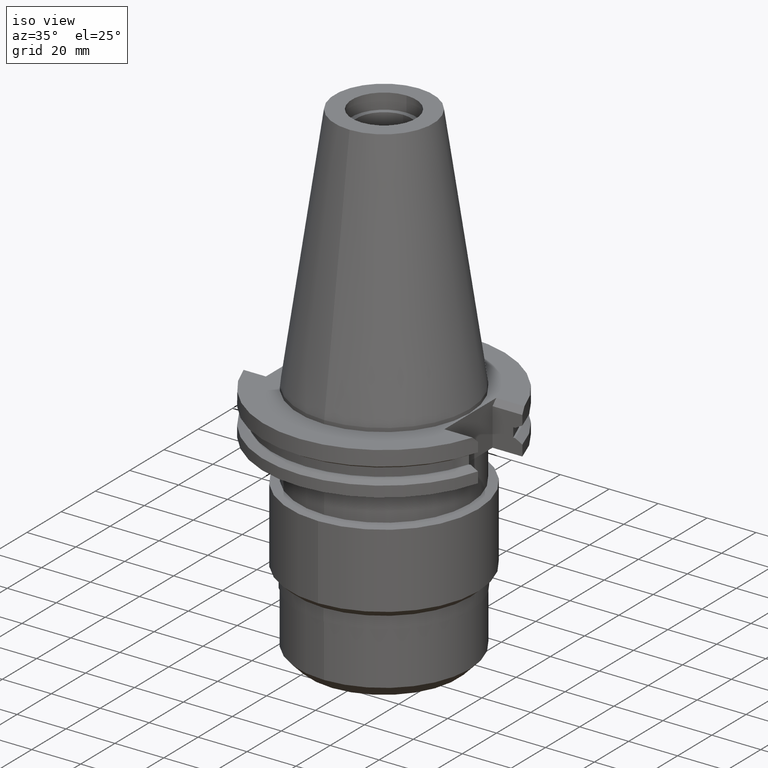
[diagram: clean part render]
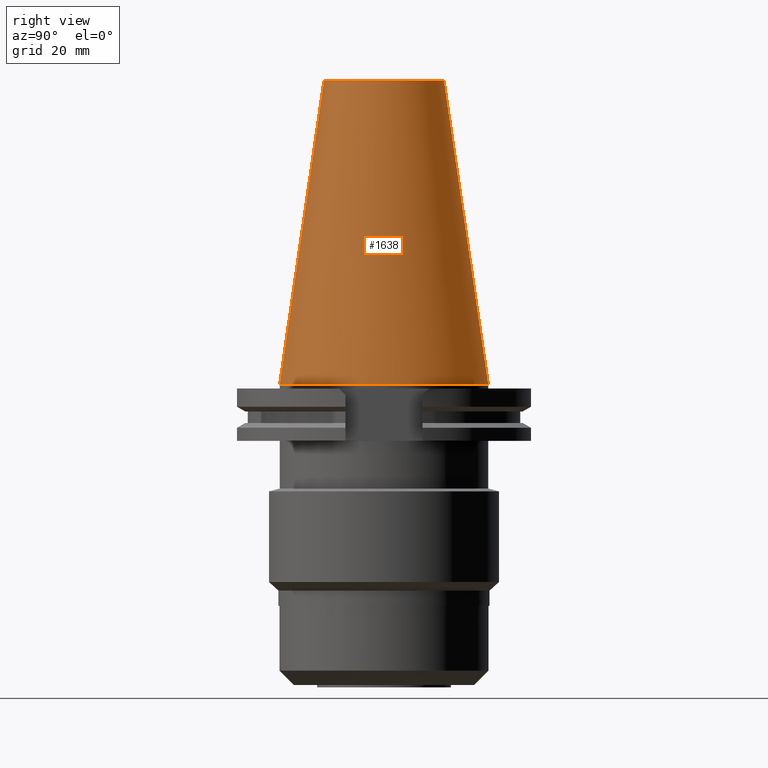
[diagram: tour spotlight — one face highlighted and labeled with its STEP entity id]
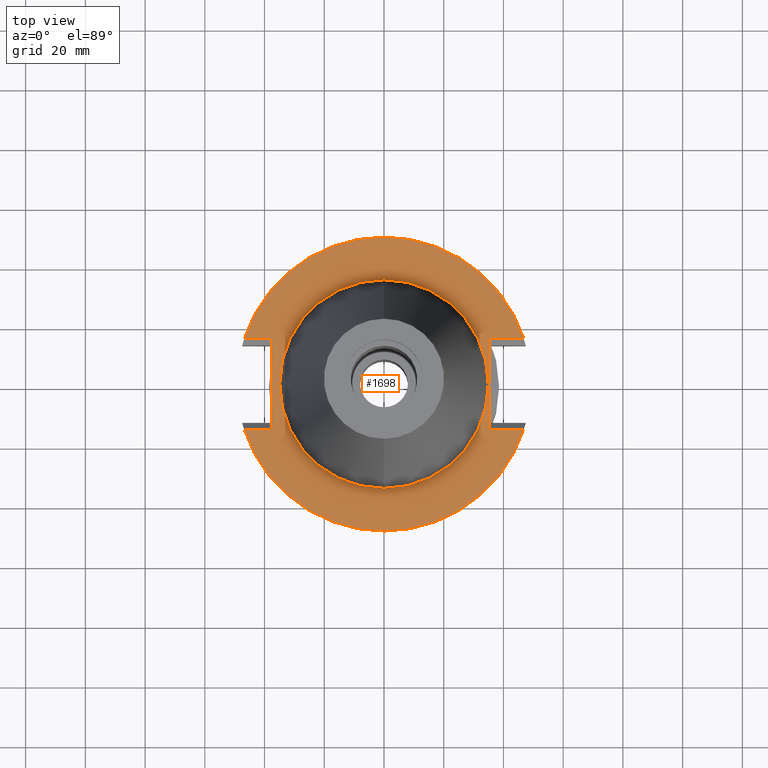
[diagram: tour spotlight — one face highlighted and labeled with its STEP entity id]
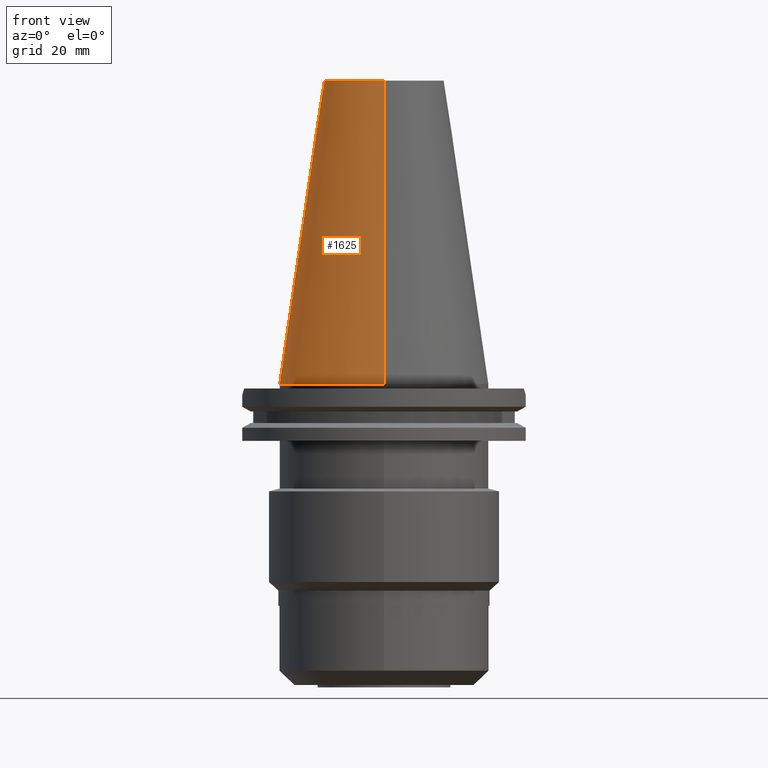
[diagram: tour spotlight — one face highlighted and labeled with its STEP entity id]
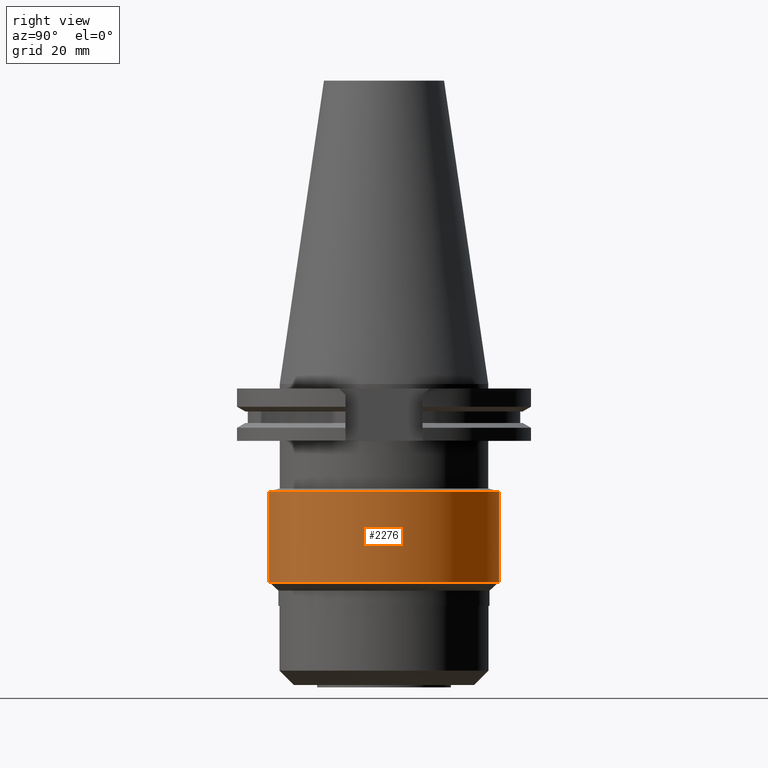
[diagram: tour spotlight — one face highlighted and labeled with its STEP entity id]
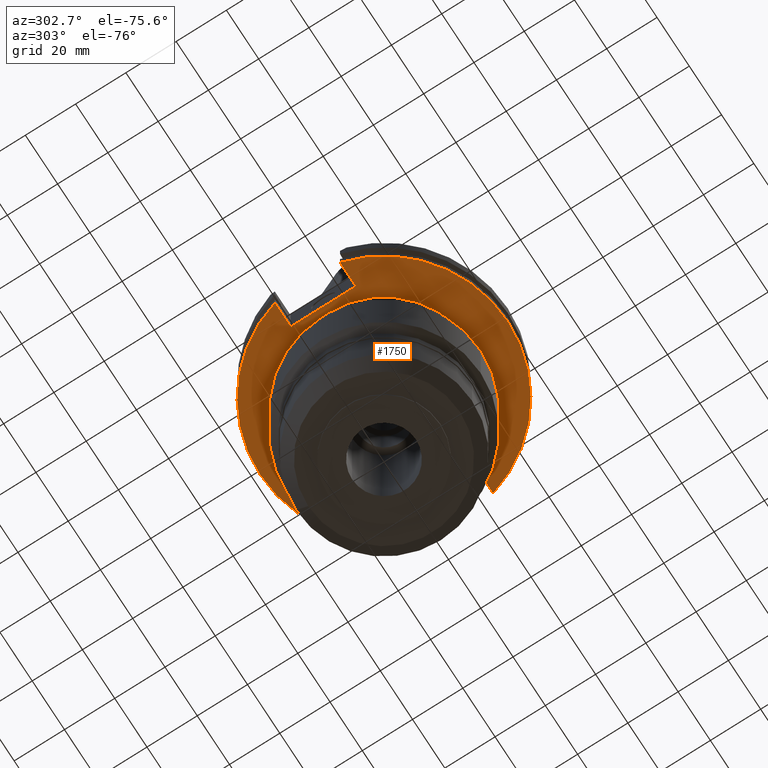
[diagram: tour spotlight — one face highlighted and labeled with its STEP entity id]
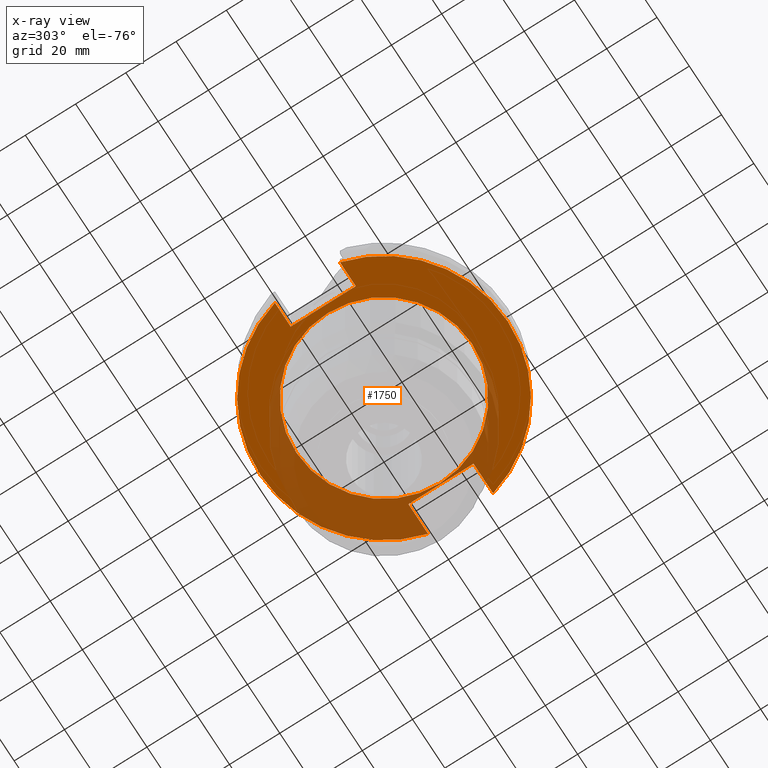
[diagram: x-ray of the same camera — body ghosted, this tour face saturated]
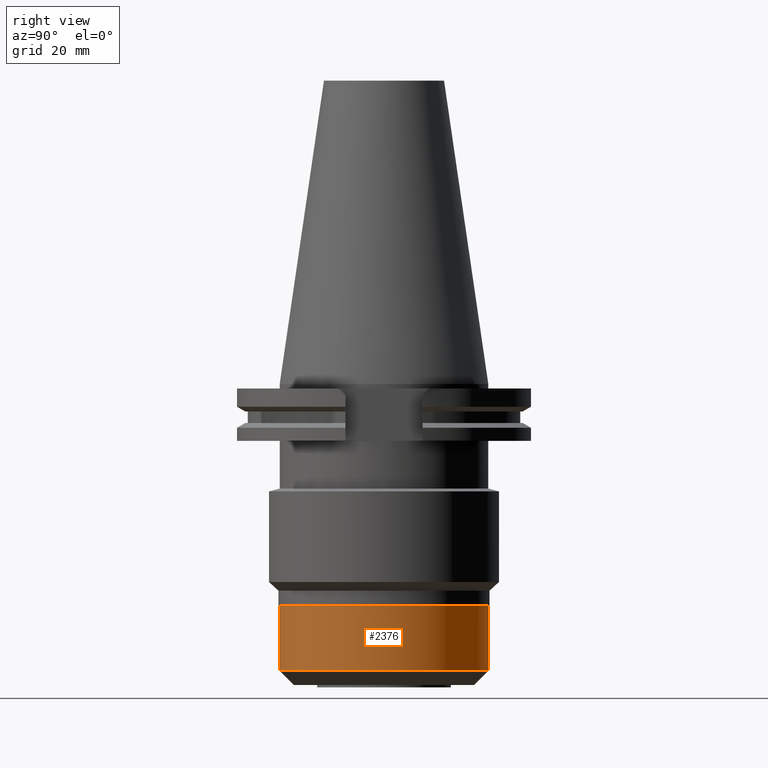
[diagram: tour spotlight — one face highlighted and labeled with its STEP entity id]
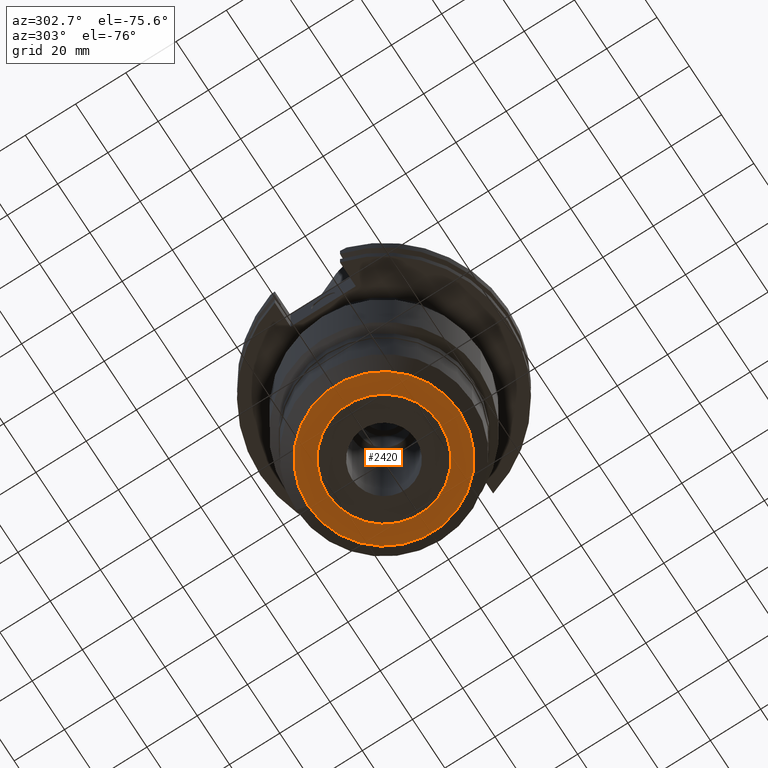
[diagram: tour spotlight — one face highlighted and labeled with its STEP entity id]
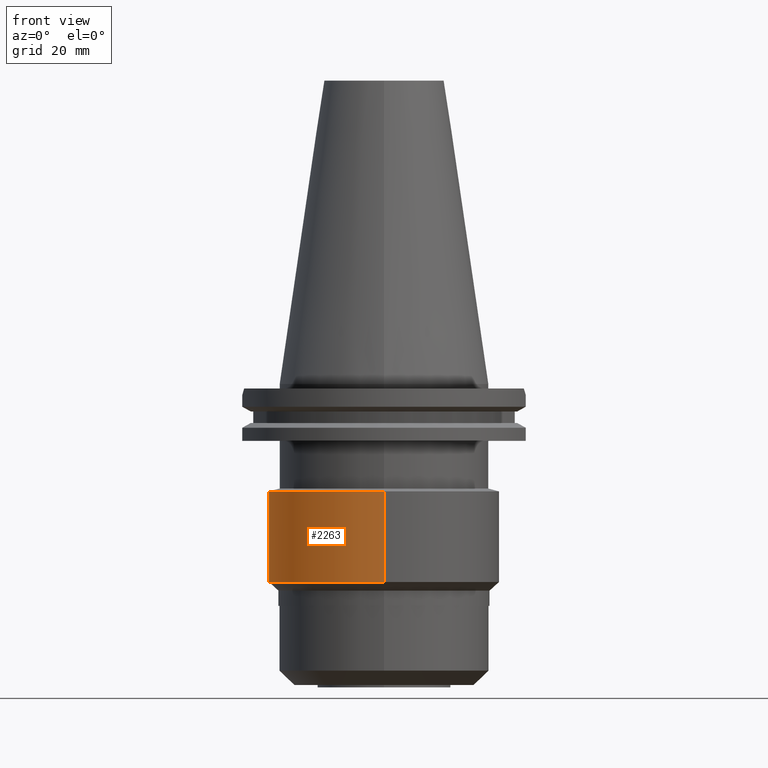
[diagram: tour spotlight — one face highlighted and labeled with its STEP entity id]
A machine part: a face-by-face anatomy tour. The part has 69 B-rep faces; the first image is the clean iso view, then the 8 largest visible faces are spotlighted one at a time (largest first), each with its STEP entity span.

Face 1 — right view, entity #1638. In plain terms, the highlighted conical surface has half-angle 8.297 deg.
Definition (entity closure, byte-faithful):
#26=CARTESIAN_POINT('',(0.E0,0.E0,1.016E2));
#27=DIRECTION('',(0.E0,0.E0,-1.E0));
#28=DIRECTION('',(0.E0,1.E0,0.E0));
#29=AXIS2_PLACEMENT_3D('',#26,#27,#28);
#50=DIRECTION('',(0.E0,-1.443069799457E-1,-9.895329683942E-1));
#51=VECTOR('',#50,1.026746993229E2);
#52=CARTESIAN_POINT('',(0.E0,-2.010832422387E1,1.016E2));
#53=LINE('',#52,#51);
#65=DIRECTION('',(0.E0,1.443069799457E-1,-9.895329683942E-1));
#66=VECTOR('',#65,1.026746993229E2);
#67=CARTESIAN_POINT('',(0.E0,2.010832422387E1,1.016E2));
#68=LINE('',#67,#66);
#72=CARTESIAN_POINT('',(0.E0,0.E0,7.958078640513E-13));
#73=DIRECTION('',(0.E0,0.E0,-1.E0));
#74=DIRECTION('',(0.E0,1.E0,0.E0));
#75=AXIS2_PLACEMENT_3D('',#72,#73,#74);
#1364=CARTESIAN_POINT('',(0.E0,-2.010832422388E1,1.016E2));
#1365=CARTESIAN_POINT('',(0.E0,2.010832422388E1,1.016E2));
#1366=VERTEX_POINT('',#1364);
#1367=VERTEX_POINT('',#1365);
#1372=CARTESIAN_POINT('',(0.E0,3.4925E1,5.400124791777E-13));
#1373=VERTEX_POINT('',#1372);
#1374=CARTESIAN_POINT('',(0.E0,-3.4925E1,5.400124791777E-13));
#1375=VERTEX_POINT('',#1374);
#1626=CARTESIAN_POINT('',(0.E0,0.E0,5.08E1));
#1627=DIRECTION('',(0.E0,0.E0,-1.E0));
#1628=DIRECTION('',(0.E0,-1.E0,0.E0));
#1629=AXIS2_PLACEMENT_3D('',#1626,#1627,#1628);
#1630=CONICAL_SURFACE('',#1629,2.751666211194E1,8.29715E0);
#1631=ORIENTED_EDGE('',*,*,#1616,.T.);
#1633=ORIENTED_EDGE('',*,*,#1632,.T.);
#1634=ORIENTED_EDGE('',*,*,#1619,.F.);
#1635=ORIENTED_EDGE('',*,*,#1600,.F.);
#1636=EDGE_LOOP('',(#1631,#1633,#1634,#1635));
#1637=FACE_OUTER_BOUND('',#1636,.F.);
#30=CIRCLE('',#29,2.010832422388E1);
#76=CIRCLE('',#75,3.4925E1);
#1600=EDGE_CURVE('',#1367,#1366,#30,.T.);
#1616=EDGE_CURVE('',#1367,#1373,#68,.T.);
#1619=EDGE_CURVE('',#1366,#1375,#53,.T.);
#1632=EDGE_CURVE('',#1373,#1375,#76,.T.);
#1638=ADVANCED_FACE('',(#1637),#1630,.T.);

Face 2 — top view, entity #1698. In plain terms, the highlighted planar face has unit normal (0, 0, 1).
Definition (entity closure, byte-faithful):
#94=DIRECTION('',(0.E0,-1.E0,0.E0));
#95=VECTOR('',#94,3.031E1);
#96=CARTESIAN_POINT('',(3.527E1,1.5155E1,-1.5E0));
#97=LINE('',#96,#95);
#101=DIRECTION('',(1.E0,0.E0,0.E0));
#102=VECTOR('',#101,1.155089417397E1);
#103=CARTESIAN_POINT('',(3.527E1,-1.5155E1,-1.5E0));
#104=LINE('',#103,#102);
#108=CARTESIAN_POINT('',(0.E0,0.E0,-1.5E0));
#109=DIRECTION('',(0.E0,0.E0,-1.E0));
#110=DIRECTION('',(9.514024724200E-1,-3.079502159004E-1,0.E0));
#111=AXIS2_PLACEMENT_3D('',#108,#109,#110);
#116=CARTESIAN_POINT('',(0.E0,0.E0,-1.5E0));
#117=DIRECTION('',(0.E0,0.E0,-1.E0));
#118=DIRECTION('',(0.E0,-1.E0,0.E0));
#119=AXIS2_PLACEMENT_3D('',#116,#117,#118);
#124=DIRECTION('',(0.E0,1.E0,0.E0));
#125=VECTOR('',#124,3.031E1);
#126=CARTESIAN_POINT('',(-3.768E1,-1.5155E1,-1.5E0));
#127=LINE('',#126,#125);
#131=DIRECTION('',(-1.E0,-1.127118361994E-14,0.E0));
#132=VECTOR('',#131,9.140894173969E0);
#133=CARTESIAN_POINT('',(-3.768E1,1.5155E1,-1.5E0));
#134=LINE('',#133,#132);
#138=CARTESIAN_POINT('',(0.E0,0.E0,-1.5E0));
#139=DIRECTION('',(0.E0,0.E0,-1.E0));
#140=DIRECTION('',(-9.514024724200E-1,3.079502159004E-1,0.E0));
#141=AXIS2_PLACEMENT_3D('',#138,#139,#140);
#146=CARTESIAN_POINT('',(0.E0,0.E0,-1.5E0));
#147=DIRECTION('',(0.E0,0.E0,-1.E0));
#148=DIRECTION('',(0.E0,1.E0,0.E0));
#149=AXIS2_PLACEMENT_3D('',#146,#147,#148);
#154=CARTESIAN_POINT('',(0.E0,0.E0,-1.5E0));
#155=DIRECTION('',(0.E0,0.E0,1.E0));
#156=DIRECTION('',(0.E0,-1.E0,0.E0));
#157=AXIS2_PLACEMENT_3D('',#154,#155,#156);
#162=CARTESIAN_POINT('',(0.E0,0.E0,-1.5E0));
#163=DIRECTION('',(0.E0,0.E0,1.E0));
#164=DIRECTION('',(0.E0,1.E0,0.E0));
#165=AXIS2_PLACEMENT_3D('',#162,#163,#164);
#289=DIRECTION('',(1.E0,0.E0,0.E0));
#290=VECTOR('',#289,1.155089417397E1);
#291=CARTESIAN_POINT('',(3.527E1,1.5155E1,-1.5E0));
#292=LINE('',#291,#290);
#576=DIRECTION('',(-1.E0,1.127118361994E-14,0.E0));
#577=VECTOR('',#576,9.140894173969E0);
#578=CARTESIAN_POINT('',(-3.768E1,-1.5155E1,-1.5E0));
#579=LINE('',#578,#577);
#1376=CARTESIAN_POINT('',(0.E0,3.4925E1,-1.5E0));
#1377=VERTEX_POINT('',#1376);
#1378=CARTESIAN_POINT('',(0.E0,-3.4925E1,-1.5E0));
#1379=VERTEX_POINT('',#1378);
#1380=CARTESIAN_POINT('',(3.527E1,1.5155E1,-1.5E0));
#1381=CARTESIAN_POINT('',(3.527E1,-1.5155E1,-1.5E0));
#1382=VERTEX_POINT('',#1380);
#1383=VERTEX_POINT('',#1381);
#1384=CARTESIAN_POINT('',(4.682089417397E1,-1.5155E1,-1.5E0));
#1385=VERTEX_POINT('',#1384);
#1386=CARTESIAN_POINT('',(-6.280856145559E-14,-4.92125E1,-1.5E0));
#1387=CARTESIAN_POINT('',(-4.682089417397E1,-1.5155E1,-1.5E0));
#1388=VERTEX_POINT('',#1386);
#1389=VERTEX_POINT('',#1387);
#1390=CARTESIAN_POINT('',(-3.768E1,-1.5155E1,-1.5E0));
#1391=VERTEX_POINT('',#1390);
#1392=CARTESIAN_POINT('',(-3.768E1,1.5155E1,-1.5E0));
#1393=VERTEX_POINT('',#1392);
#1394=CARTESIAN_POINT('',(-4.682089417397E1,1.5155E1,-1.5E0));
#1395=VERTEX_POINT('',#1394);
#1396=CARTESIAN_POINT('',(0.E0,4.92125E1,-1.5E0));
#1397=CARTESIAN_POINT('',(4.682089417397E1,1.5155E1,-1.5E0));
#1398=VERTEX_POINT('',#1396);
#1399=VERTEX_POINT('',#1397);
#1667=CARTESIAN_POINT('',(0.E0,0.E0,-1.5E0));
#1668=DIRECTION('',(0.E0,0.E0,1.E0));
#1669=DIRECTION('',(0.E0,1.E0,0.E0));
#1670=AXIS2_PLACEMENT_3D('',#1667,#1668,#1669);
#1671=PLANE('',#1670);
#1673=ORIENTED_EDGE('',*,*,#1672,.T.);
#1675=ORIENTED_EDGE('',*,*,#1674,.T.);
#1677=ORIENTED_EDGE('',*,*,#1676,.T.);
#1679=ORIENTED_EDGE('',*,*,#1678,.T.);
#1681=ORIENTED_EDGE('',*,*,#1680,.F.);
#1683=ORIENTED_EDGE('',*,*,#1682,.T.);
#1685=ORIENTED_EDGE('',*,*,#1684,.T.);
#1687=ORIENTED_EDGE('',*,*,#1686,.T.);
#1689=ORIENTED_EDGE('',*,*,#1688,.T.);
#1691=ORIENTED_EDGE('',*,*,#1690,.F.);
#1692=EDGE_LOOP('',(#1673,#1675,#1677,#1679,#1681,#1683,#1685,#1687,#1689,
#1691));
#1693=FACE_OUTER_BOUND('',#1692,.F.);
#1694=ORIENTED_EDGE('',*,*,#1646,.T.);
#1695=ORIENTED_EDGE('',*,*,#1662,.T.);
#1696=EDGE_LOOP('',(#1694,#1695));
#1697=FACE_BOUND('',#1696,.F.);
#112=CIRCLE('',#111,4.92125E1);
#120=CIRCLE('',#119,4.92125E1);
#142=CIRCLE('',#141,4.92125E1);
#150=CIRCLE('',#149,4.92125E1);
#158=CIRCLE('',#157,3.4925E1);
#166=CIRCLE('',#165,3.4925E1);
#1646=EDGE_CURVE('',#1379,#1377,#158,.T.);
#1662=EDGE_CURVE('',#1377,#1379,#166,.T.);
#1672=EDGE_CURVE('',#1382,#1383,#97,.T.);
#1674=EDGE_CURVE('',#1383,#1385,#104,.T.);
#1676=EDGE_CURVE('',#1385,#1388,#112,.T.);
#1678=EDGE_CURVE('',#1388,#1389,#120,.T.);
#1680=EDGE_CURVE('',#1391,#1389,#579,.T.);
#1682=EDGE_CURVE('',#1391,#1393,#127,.T.);
#1684=EDGE_CURVE('',#1393,#1395,#134,.T.);
#1686=EDGE_CURVE('',#1395,#1398,#142,.T.);
#1688=EDGE_CURVE('',#1398,#1399,#150,.T.);
#1690=EDGE_CURVE('',#1382,#1399,#292,.T.);
#1698=ADVANCED_FACE('',(#1693,#1697),#1671,.T.);

Face 3 — front view, entity #1625. In plain terms, the highlighted conical surface has half-angle 8.297 deg.
Definition (entity closure, byte-faithful):
#17=CARTESIAN_POINT('',(0.E0,0.E0,1.016E2));
#18=DIRECTION('',(0.E0,0.E0,-1.E0));
#19=DIRECTION('',(0.E0,-1.E0,0.E0));
#20=AXIS2_PLACEMENT_3D('',#17,#18,#19);
#50=DIRECTION('',(0.E0,-1.443069799457E-1,-9.895329683942E-1));
#51=VECTOR('',#50,1.026746993229E2);
#52=CARTESIAN_POINT('',(0.E0,-2.010832422387E1,1.016E2));
#53=LINE('',#52,#51);
#57=CARTESIAN_POINT('',(0.E0,0.E0,7.958078640513E-13));
#58=DIRECTION('',(0.E0,0.E0,-1.E0));
#59=DIRECTION('',(0.E0,-1.E0,0.E0));
#60=AXIS2_PLACEMENT_3D('',#57,#58,#59);
#65=DIRECTION('',(0.E0,1.443069799457E-1,-9.895329683942E-1));
#66=VECTOR('',#65,1.026746993229E2);
#67=CARTESIAN_POINT('',(0.E0,2.010832422387E1,1.016E2));
#68=LINE('',#67,#66);
#1364=CARTESIAN_POINT('',(0.E0,-2.010832422388E1,1.016E2));
#1365=CARTESIAN_POINT('',(0.E0,2.010832422388E1,1.016E2));
#1366=VERTEX_POINT('',#1364);
#1367=VERTEX_POINT('',#1365);
#1372=CARTESIAN_POINT('',(0.E0,3.4925E1,5.400124791777E-13));
#1373=VERTEX_POINT('',#1372);
#1374=CARTESIAN_POINT('',(0.E0,-3.4925E1,5.400124791777E-13));
#1375=VERTEX_POINT('',#1374);
#1611=CARTESIAN_POINT('',(0.E0,0.E0,5.08E1));
#1612=DIRECTION('',(0.E0,0.E0,-1.E0));
#1613=DIRECTION('',(0.E0,-1.E0,0.E0));
#1614=AXIS2_PLACEMENT_3D('',#1611,#1612,#1613);
#1615=CONICAL_SURFACE('',#1614,2.751666211194E1,8.29715E0);
#1617=ORIENTED_EDGE('',*,*,#1616,.F.);
#1618=ORIENTED_EDGE('',*,*,#1598,.F.);
#1620=ORIENTED_EDGE('',*,*,#1619,.T.);
#1622=ORIENTED_EDGE('',*,*,#1621,.T.);
#1623=EDGE_LOOP('',(#1617,#1618,#1620,#1622));
#1624=FACE_OUTER_BOUND('',#1623,.F.);
#21=CIRCLE('',#20,2.010832422388E1);
#61=CIRCLE('',#60,3.4925E1);
#1598=EDGE_CURVE('',#1366,#1367,#21,.T.);
#1616=EDGE_CURVE('',#1367,#1373,#68,.T.);
#1619=EDGE_CURVE('',#1366,#1375,#53,.T.);
#1621=EDGE_CURVE('',#1375,#1373,#61,.T.);
#1625=ADVANCED_FACE('',(#1624),#1615,.T.);

Face 4 — right view, entity #2276. In plain terms, the highlighted cylindrical surface (partial cylindrical patch) has radius 38.5 mm, axis along (0, 0, 1).
Definition (entity closure, byte-faithful):
#869=CARTESIAN_POINT('',(0.E0,0.E0,-3.595791836294E1));
#870=DIRECTION('',(0.E0,0.E0,-1.E0));
#871=DIRECTION('',(0.E0,1.E0,0.E0));
#872=AXIS2_PLACEMENT_3D('',#869,#870,#871);
#908=DIRECTION('',(0.E0,-2.388608662861E-14,-1.E0));
#909=VECTOR('',#908,3.034208163706E1);
#910=CARTESIAN_POINT('',(0.E0,-3.85E1,-3.595791836294E1));
#911=LINE('',#910,#909);
#915=DIRECTION('',(0.E0,2.388608662861E-14,-1.E0));
#916=VECTOR('',#915,3.034208163706E1);
#917=CARTESIAN_POINT('',(0.E0,3.85E1,-3.595791836294E1));
#918=LINE('',#917,#916);
#937=CARTESIAN_POINT('',(0.E0,0.E0,-6.63E1));
#938=DIRECTION('',(0.E0,0.E0,1.E0));
#939=DIRECTION('',(0.E0,-1.E0,0.E0));
#940=AXIS2_PLACEMENT_3D('',#937,#938,#939);
#1432=CARTESIAN_POINT('',(0.E0,3.85E1,-3.595791836294E1));
#1433=VERTEX_POINT('',#1432);
#1434=CARTESIAN_POINT('',(0.E0,-3.85E1,-3.595791836294E1));
#1435=VERTEX_POINT('',#1434);
#1436=CARTESIAN_POINT('',(0.E0,3.85E1,-6.63E1));
#1437=VERTEX_POINT('',#1436);
#1438=CARTESIAN_POINT('',(0.E0,-3.85E1,-6.63E1));
#1439=VERTEX_POINT('',#1438);
#2264=CARTESIAN_POINT('',(0.E0,0.E0,-1.1176E2));
#2265=DIRECTION('',(0.E0,0.E0,1.E0));
#2266=DIRECTION('',(0.E0,1.E0,0.E0));
#2267=AXIS2_PLACEMENT_3D('',#2264,#2265,#2266);
#2268=CYLINDRICAL_SURFACE('',#2267,3.85E1);
#2269=ORIENTED_EDGE('',*,*,#2254,.T.);
#2271=ORIENTED_EDGE('',*,*,#2270,.F.);
#2272=ORIENTED_EDGE('',*,*,#2257,.F.);
#2273=ORIENTED_EDGE('',*,*,#2228,.F.);
#2274=EDGE_LOOP('',(#2269,#2271,#2272,#2273));
#2275=FACE_OUTER_BOUND('',#2274,.F.);
#873=CIRCLE('',#872,3.85E1);
#941=CIRCLE('',#940,3.85E1);
#2228=EDGE_CURVE('',#1433,#1435,#873,.T.);
#2254=EDGE_CURVE('',#1433,#1437,#918,.T.);
#2257=EDGE_CURVE('',#1435,#1439,#911,.T.);
#2270=EDGE_CURVE('',#1439,#1437,#941,.T.);
#2276=ADVANCED_FACE('',(#2275),#2268,.T.);

Face 5 — auxiliary view, entity #1750. An x-ray twin of the same camera follows (body ghosted, this face saturated) — the face is partly hidden behind the body. In plain terms, the highlighted planar face has unit normal (0, 0, 1).
Definition (entity closure, byte-faithful):
#170=DIRECTION('',(0.E0,-1.E0,0.E0));
#171=VECTOR('',#170,2.591E1);
#172=CARTESIAN_POINT('',(3.527E1,1.2955E1,-1.905E1));
#173=LINE('',#172,#171);
#205=DIRECTION('',(1.E0,1.469781941986E-14,0.E0));
#206=VECTOR('',#205,1.220671146204E1);
#207=CARTESIAN_POINT('',(3.527E1,1.2955E1,-1.905E1));
#208=LINE('',#207,#206);
#212=CARTESIAN_POINT('',(0.E0,0.E0,-1.905E1));
#213=DIRECTION('',(0.E0,0.E0,1.E0));
#214=DIRECTION('',(9.647287063661E-1,2.632461264923E-1,0.E0));
#215=AXIS2_PLACEMENT_3D('',#212,#213,#214);
#220=CARTESIAN_POINT('',(0.E0,0.E0,-1.905E1));
#221=DIRECTION('',(0.E0,0.E0,1.E0));
#222=DIRECTION('',(0.E0,1.E0,0.E0));
#223=AXIS2_PLACEMENT_3D('',#220,#221,#222);
#228=DIRECTION('',(-1.E0,-1.831349647018E-14,0.E0));
#229=VECTOR('',#228,9.796711462041E0);
#230=CARTESIAN_POINT('',(-3.768E1,-1.2955E1,-1.905E1));
#231=LINE('',#230,#229);
#235=CARTESIAN_POINT('',(0.E0,0.E0,-1.905E1));
#236=DIRECTION('',(0.E0,0.E0,1.E0));
#237=DIRECTION('',(-9.647287063661E-1,-2.632461264923E-1,0.E0));
#238=AXIS2_PLACEMENT_3D('',#235,#236,#237);
#243=CARTESIAN_POINT('',(0.E0,0.E0,-1.905E1));
#244=DIRECTION('',(0.E0,0.E0,1.E0));
#245=DIRECTION('',(0.E0,-1.E0,0.E0));
#246=AXIS2_PLACEMENT_3D('',#243,#244,#245);
#251=CARTESIAN_POINT('',(0.E0,0.E0,-1.905E1));
#252=DIRECTION('',(0.E0,0.E0,-1.E0));
#253=DIRECTION('',(0.E0,-1.E0,0.E0));
#254=AXIS2_PLACEMENT_3D('',#251,#252,#253);
#259=CARTESIAN_POINT('',(0.E0,0.E0,-1.905E1));
#260=DIRECTION('',(0.E0,0.E0,-1.E0));
#261=DIRECTION('',(0.E0,1.E0,0.E0));
#262=AXIS2_PLACEMENT_3D('',#259,#260,#261);
#318=DIRECTION('',(0.E0,1.E0,0.E0));
#319=VECTOR('',#318,2.591E1);
#320=CARTESIAN_POINT('',(-3.768E1,-1.2955E1,-1.905E1));
#321=LINE('',#320,#319);
#355=DIRECTION('',(-1.E0,1.813217472295E-14,0.E0));
#356=VECTOR('',#355,9.796711462041E0);
#357=CARTESIAN_POINT('',(-3.768E1,1.2955E1,-1.905E1));
#358=LINE('',#357,#356);
#605=DIRECTION('',(1.E0,-1.498886534897E-14,0.E0));
#606=VECTOR('',#605,1.220671146204E1);
#607=CARTESIAN_POINT('',(3.527E1,-1.2955E1,-1.905E1));
#608=LINE('',#607,#606);
#1400=CARTESIAN_POINT('',(3.527E1,1.2955E1,-1.905E1));
#1401=CARTESIAN_POINT('',(3.527E1,-1.2955E1,-1.905E1));
#1402=VERTEX_POINT('',#1400);
#1403=VERTEX_POINT('',#1401);
#1408=CARTESIAN_POINT('',(4.747671146204E1,1.2955E1,-1.905E1));
#1409=VERTEX_POINT('',#1408);
#1410=CARTESIAN_POINT('',(0.E0,4.92125E1,-1.905E1));
#1411=CARTESIAN_POINT('',(-4.747671146204E1,1.2955E1,-1.905E1));
#1412=VERTEX_POINT('',#1410);
#1413=VERTEX_POINT('',#1411);
#1414=CARTESIAN_POINT('',(-3.768E1,1.2955E1,-1.905E1));
#1415=VERTEX_POINT('',#1414);
#1416=CARTESIAN_POINT('',(-3.768E1,-1.2955E1,-1.905E1));
#1417=VERTEX_POINT('',#1416);
#1418=CARTESIAN_POINT('',(-4.747671146204E1,-1.2955E1,-1.905E1));
#1419=VERTEX_POINT('',#1418);
#1420=CARTESIAN_POINT('',(0.E0,-4.92125E1,-1.905E1));
#1421=CARTESIAN_POINT('',(4.747671146204E1,-1.2955E1,-1.905E1));
#1422=VERTEX_POINT('',#1420);
#1423=VERTEX_POINT('',#1421);
#1424=CARTESIAN_POINT('',(0.E0,-3.4925E1,-1.905E1));
#1425=CARTESIAN_POINT('',(0.E0,3.4925E1,-1.905E1));
#1426=VERTEX_POINT('',#1424);
#1427=VERTEX_POINT('',#1425);
#1718=CARTESIAN_POINT('',(0.E0,0.E0,-1.905E1));
#1719=DIRECTION('',(0.E0,0.E0,1.E0));
#1720=DIRECTION('',(0.E0,1.E0,0.E0));
#1721=AXIS2_PLACEMENT_3D('',#1718,#1719,#1720);
#1722=PLANE('',#1721);
#1723=ORIENTED_EDGE('',*,*,#1704,.F.);
#1725=ORIENTED_EDGE('',*,*,#1724,.T.);
#1727=ORIENTED_EDGE('',*,*,#1726,.T.);
#1729=ORIENTED_EDGE('',*,*,#1728,.T.);
#1731=ORIENTED_EDGE('',*,*,#1730,.F.);
#1733=ORIENTED_EDGE('',*,*,#1732,.F.);
#1735=ORIENTED_EDGE('',*,*,#1734,.T.);
#1737=ORIENTED_EDGE('',*,*,#1736,.T.);
#1739=ORIENTED_EDGE('',*,*,#1738,.T.);
#1741=ORIENTED_EDGE('',*,*,#1740,.F.);
#1742=EDGE_LOOP('',(#1723,#1725,#1727,#1729,#1731,#1733,#1735,#1737,#1739,
#1741));
#1743=FACE_OUTER_BOUND('',#1742,.F.);
#1745=ORIENTED_EDGE('',*,*,#1744,.T.);
#1747=ORIENTED_EDGE('',*,*,#1746,.T.);
#1748=EDGE_LOOP('',(#1745,#1747));
#1749=FACE_BOUND('',#1748,.F.);
#216=CIRCLE('',#215,4.92125E1);
#224=CIRCLE('',#223,4.92125E1);
#239=CIRCLE('',#238,4.92125E1);
#247=CIRCLE('',#246,4.92125E1);
#255=CIRCLE('',#254,3.4925E1);
#263=CIRCLE('',#262,3.4925E1);
#1704=EDGE_CURVE('',#1402,#1403,#173,.T.);
#1724=EDGE_CURVE('',#1402,#1409,#208,.T.);
#1726=EDGE_CURVE('',#1409,#1412,#216,.T.);
#1728=EDGE_CURVE('',#1412,#1413,#224,.T.);
#1730=EDGE_CURVE('',#1415,#1413,#358,.T.);
#1732=EDGE_CURVE('',#1417,#1415,#321,.T.);
#1734=EDGE_CURVE('',#1417,#1419,#231,.T.);
#1736=EDGE_CURVE('',#1419,#1422,#239,.T.);
#1738=EDGE_CURVE('',#1422,#1423,#247,.T.);
#1740=EDGE_CURVE('',#1403,#1423,#608,.T.);
#1744=EDGE_CURVE('',#1426,#1427,#255,.T.);
#1746=EDGE_CURVE('',#1427,#1426,#263,.T.);
#1750=ADVANCED_FACE('',(#1743,#1749),#1722,.F.);

Face 6 — right view, entity #2376. In plain terms, the highlighted cylindrical surface (partial cylindrical patch) has radius 35 mm, axis along (0, 0, 1).
Definition (entity closure, byte-faithful):
#1006=CARTESIAN_POINT('',(0.E0,0.E0,-7.43E1));
#1007=DIRECTION('',(0.E0,0.E0,-1.E0));
#1008=DIRECTION('',(0.E0,1.E0,0.E0));
#1009=AXIS2_PLACEMENT_3D('',#1006,#1007,#1008);
#1014=DIRECTION('',(0.E0,0.E0,-1.E0));
#1015=VECTOR('',#1014,2.17E1);
#1016=CARTESIAN_POINT('',(0.E0,-3.5E1,-7.43E1));
#1017=LINE('',#1016,#1015);
#1021=DIRECTION('',(0.E0,0.E0,-1.E0));
#1022=VECTOR('',#1021,2.17E1);
#1023=CARTESIAN_POINT('',(0.E0,3.5E1,-7.43E1));
#1024=LINE('',#1023,#1022);
#1035=CARTESIAN_POINT('',(0.E0,0.E0,-9.6E1));
#1036=DIRECTION('',(0.E0,0.E0,1.E0));
#1037=DIRECTION('',(0.E0,-1.E0,0.E0));
#1038=AXIS2_PLACEMENT_3D('',#1035,#1036,#1037);
#1448=CARTESIAN_POINT('',(0.E0,-3.5E1,-7.43E1));
#1449=CARTESIAN_POINT('',(0.E0,3.5E1,-7.43E1));
#1450=VERTEX_POINT('',#1448);
#1451=VERTEX_POINT('',#1449);
#1452=CARTESIAN_POINT('',(0.E0,3.5E1,-9.6E1));
#1453=VERTEX_POINT('',#1452);
#1454=CARTESIAN_POINT('',(0.E0,-3.5E1,-9.6E1));
#1455=VERTEX_POINT('',#1454);
#2364=CARTESIAN_POINT('',(0.E0,0.E0,-1.1176E2));
#2365=DIRECTION('',(0.E0,0.E0,1.E0));
#2366=DIRECTION('',(0.E0,1.E0,0.E0));
#2367=AXIS2_PLACEMENT_3D('',#2364,#2365,#2366);
#2368=CYLINDRICAL_SURFACE('',#2367,3.5E1);
#2369=ORIENTED_EDGE('',*,*,#2354,.T.);
#2371=ORIENTED_EDGE('',*,*,#2370,.F.);
#2372=ORIENTED_EDGE('',*,*,#2357,.F.);
#2373=ORIENTED_EDGE('',*,*,#2344,.F.);
#2374=EDGE_LOOP('',(#2369,#2371,#2372,#2373));
#2375=FACE_OUTER_BOUND('',#2374,.F.);
#1010=CIRCLE('',#1009,3.5E1);
#1039=CIRCLE('',#1038,3.5E1);
#2344=EDGE_CURVE('',#1451,#1450,#1010,.T.);
#2354=EDGE_CURVE('',#1451,#1453,#1024,.T.);
#2357=EDGE_CURVE('',#1450,#1455,#1017,.T.);
#2370=EDGE_CURVE('',#1455,#1453,#1039,.T.);
#2376=ADVANCED_FACE('',(#2375),#2368,.T.);

Face 7 — auxiliary view, entity #2420. In plain terms, the highlighted planar face has unit normal (0, 0, 1).
Definition (entity closure, byte-faithful):
#1058=CARTESIAN_POINT('',(0.E0,0.E0,-1.008E2));
#1059=DIRECTION('',(0.E0,0.E0,1.E0));
#1060=DIRECTION('',(0.E0,-1.E0,0.E0));
#1061=AXIS2_PLACEMENT_3D('',#1058,#1059,#1060);
#1066=CARTESIAN_POINT('',(0.E0,0.E0,-1.008E2));
#1067=DIRECTION('',(0.E0,0.E0,1.E0));
#1068=DIRECTION('',(0.E0,1.E0,0.E0));
#1069=AXIS2_PLACEMENT_3D('',#1066,#1067,#1068);
#1074=CARTESIAN_POINT('',(0.E0,0.E0,-1.008E2));
#1075=DIRECTION('',(0.E0,0.E0,-1.E0));
#1076=DIRECTION('',(0.E0,-1.E0,0.E0));
#1077=AXIS2_PLACEMENT_3D('',#1074,#1075,#1076);
#1082=CARTESIAN_POINT('',(0.E0,0.E0,-1.008E2));
#1083=DIRECTION('',(0.E0,0.E0,-1.E0));
#1084=DIRECTION('',(0.E0,1.E0,0.E0));
#1085=AXIS2_PLACEMENT_3D('',#1082,#1083,#1084);
#1456=CARTESIAN_POINT('',(0.E0,3.02E1,-1.008E2));
#1457=VERTEX_POINT('',#1456);
#1458=CARTESIAN_POINT('',(0.E0,-3.02E1,-1.008E2));
#1459=VERTEX_POINT('',#1458);
#1460=CARTESIAN_POINT('',(0.E0,-2.24E1,-1.008E2));
#1461=CARTESIAN_POINT('',(0.E0,2.24E1,-1.008E2));
#1462=VERTEX_POINT('',#1460);
#1463=VERTEX_POINT('',#1461);
#2405=CARTESIAN_POINT('',(0.E0,0.E0,-1.008E2));
#2406=DIRECTION('',(0.E0,0.E0,1.E0));
#2407=DIRECTION('',(0.E0,1.E0,0.E0));
#2408=AXIS2_PLACEMENT_3D('',#2405,#2406,#2407);
#2409=PLANE('',#2408);
#2410=ORIENTED_EDGE('',*,*,#2384,.T.);
#2411=ORIENTED_EDGE('',*,*,#2400,.T.);
#2412=EDGE_LOOP('',(#2410,#2411));
#2413=FACE_OUTER_BOUND('',#2412,.F.);
#2415=ORIENTED_EDGE('',*,*,#2414,.T.);
#2417=ORIENTED_EDGE('',*,*,#2416,.T.);
#2418=EDGE_LOOP('',(#2415,#2417));
#2419=FACE_BOUND('',#2418,.F.);
#1062=CIRCLE('',#1061,3.02E1);
#1070=CIRCLE('',#1069,3.02E1);
#1078=CIRCLE('',#1077,2.24E1);
#1086=CIRCLE('',#1085,2.24E1);
#2384=EDGE_CURVE('',#1459,#1457,#1062,.T.);
#2400=EDGE_CURVE('',#1457,#1459,#1070,.T.);
#2414=EDGE_CURVE('',#1462,#1463,#1078,.T.);
#2416=EDGE_CURVE('',#1463,#1462,#1086,.T.);
#2420=ADVANCED_FACE('',(#2413,#2419),#2409,.F.);

Face 8 — front view, entity #2263. In plain terms, the highlighted cylindrical surface (partial cylindrical patch) has radius 38.5 mm, axis along (0, 0, 1).
Definition (entity closure, byte-faithful):
#900=CARTESIAN_POINT('',(0.E0,0.E0,-3.595791836294E1));
#901=DIRECTION('',(0.E0,0.E0,-1.E0));
#902=DIRECTION('',(0.E0,-1.E0,0.E0));
#903=AXIS2_PLACEMENT_3D('',#900,#901,#902);
#908=DIRECTION('',(0.E0,-2.388608662861E-14,-1.E0));
#909=VECTOR('',#908,3.034208163706E1);
#910=CARTESIAN_POINT('',(0.E0,-3.85E1,-3.595791836294E1));
#911=LINE('',#910,#909);
#915=DIRECTION('',(0.E0,2.388608662861E-14,-1.E0));
#916=VECTOR('',#915,3.034208163706E1);
#917=CARTESIAN_POINT('',(0.E0,3.85E1,-3.595791836294E1));
#918=LINE('',#917,#916);
#945=CARTESIAN_POINT('',(0.E0,0.E0,-6.63E1));
#946=DIRECTION('',(0.E0,0.E0,1.E0));
#947=DIRECTION('',(0.E0,1.E0,0.E0));
#948=AXIS2_PLACEMENT_3D('',#945,#946,#947);
#1432=CARTESIAN_POINT('',(0.E0,3.85E1,-3.595791836294E1));
#1433=VERTEX_POINT('',#1432);
#1434=CARTESIAN_POINT('',(0.E0,-3.85E1,-3.595791836294E1));
#1435=VERTEX_POINT('',#1434);
#1436=CARTESIAN_POINT('',(0.E0,3.85E1,-6.63E1));
#1437=VERTEX_POINT('',#1436);
#1438=CARTESIAN_POINT('',(0.E0,-3.85E1,-6.63E1));
#1439=VERTEX_POINT('',#1438);
#2249=CARTESIAN_POINT('',(0.E0,0.E0,-1.1176E2));
#2250=DIRECTION('',(0.E0,0.E0,1.E0));
#2251=DIRECTION('',(0.E0,1.E0,0.E0));
#2252=AXIS2_PLACEMENT_3D('',#2249,#2250,#2251);
#2253=CYLINDRICAL_SURFACE('',#2252,3.85E1);
#2255=ORIENTED_EDGE('',*,*,#2254,.F.);
#2256=ORIENTED_EDGE('',*,*,#2244,.F.);
#2258=ORIENTED_EDGE('',*,*,#2257,.T.);
#2260=ORIENTED_EDGE('',*,*,#2259,.F.);
#2261=EDGE_LOOP('',(#2255,#2256,#2258,#2260));
#2262=FACE_OUTER_BOUND('',#2261,.F.);
#904=CIRCLE('',#903,3.85E1);
#949=CIRCLE('',#948,3.85E1);
#2244=EDGE_CURVE('',#1435,#1433,#904,.T.);
#2254=EDGE_CURVE('',#1433,#1437,#918,.T.);
#2257=EDGE_CURVE('',#1435,#1439,#911,.T.);
#2259=EDGE_CURVE('',#1437,#1439,#949,.T.);
#2263=ADVANCED_FACE('',(#2262),#2253,.T.);